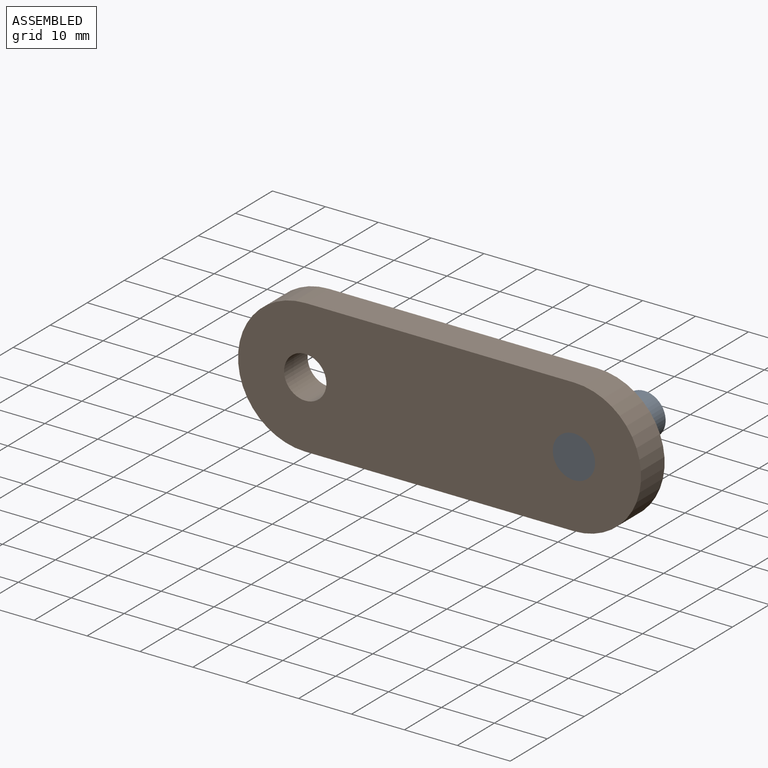
[diagram: assembled view]
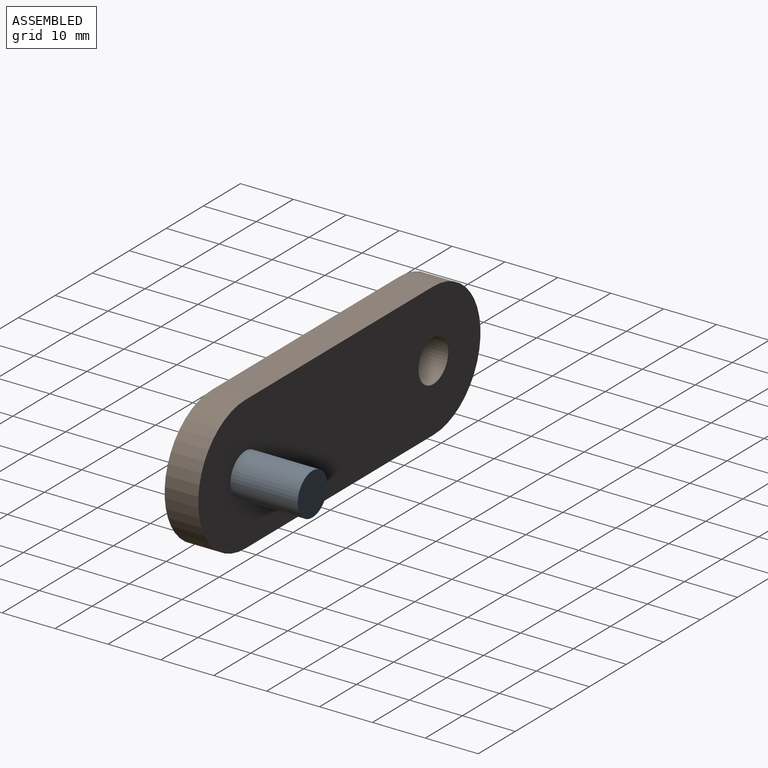
[diagram: assembled view, second angle]
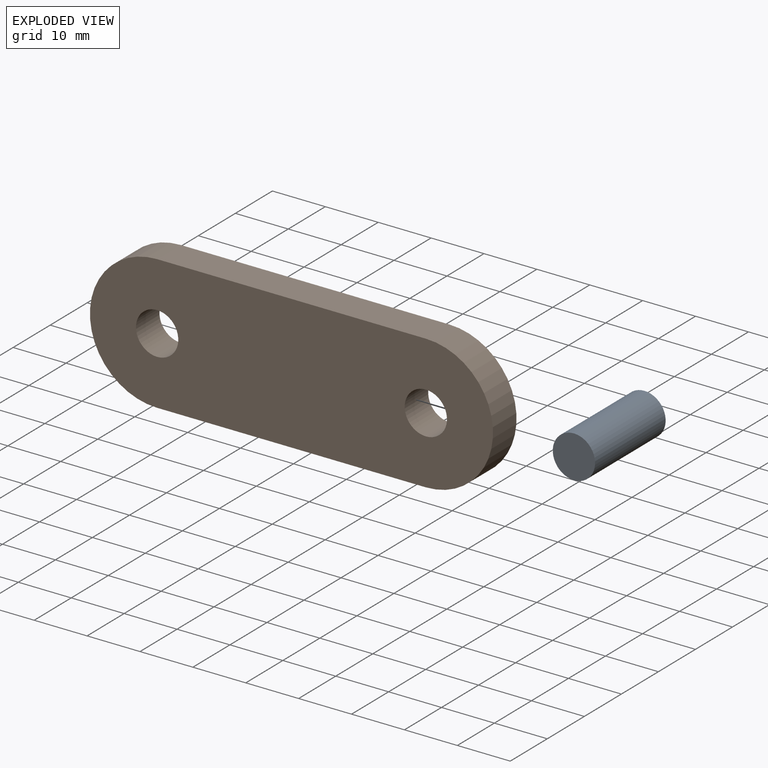
[diagram: exploded view]
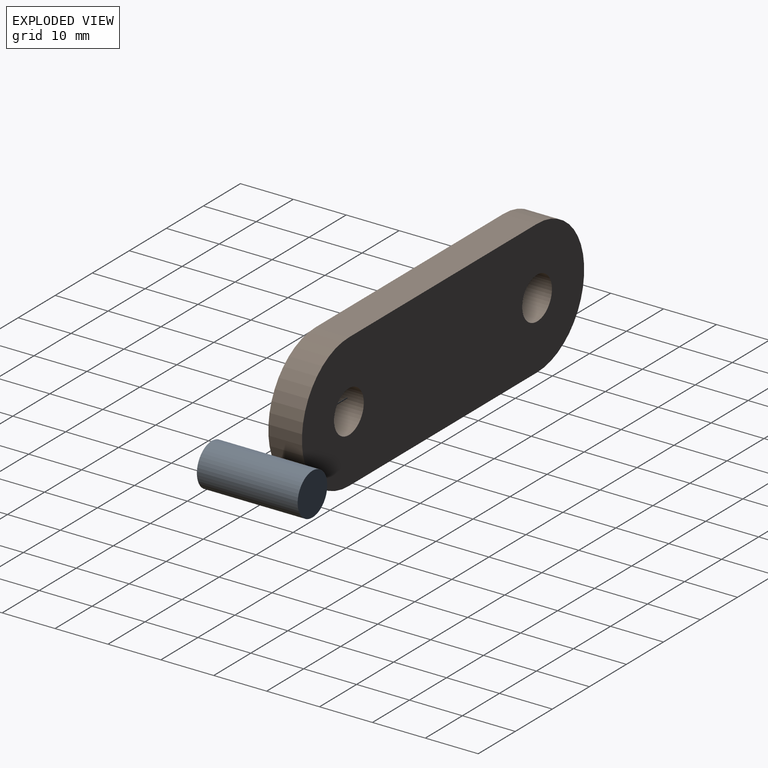
[diagram: exploded view, second angle]
ASSEMBLY  parts=2 mates=2
PART A: 3 faces, bbox 8x19.1x8 mm
  f0: cylinder r=4mm len=19.05mm, axis (0,1,0), area 478.8mm2, adj f1,f2
  f1: plane 8x8mm, normal (0,-1,0), area 50.3mm2, adj f0
  f2: plane 8x8mm, normal (0,1,0), area 50.3mm2, adj f0
PART B: 8 faces, bbox 76.2x6.4x25.4 mm
  f0: plane 50.8x6.35mm, normal (0,0,1), area 322.6mm2, adj f1,f3,f4,f5
  f1: cylinder r=12.7mm len=25.4mm, axis (0,1,0), area 253.4mm2, adj f0,f2,f4,f5
  f2: plane 50.8x6.35mm, normal (0,0,-1), area 322.6mm2, adj f1,f3,f4,f5
  f3: cylinder r=12.7mm len=25.4mm, axis (0,1,0), area 253.4mm2, adj f0,f2,f4,f5
  f4: plane 76.2x25.4mm, normal (0,-1,0), area 1696.5mm2, adj f0,f1,f2,f3,f6,f7
  f5: plane 76.2x25.4mm, normal (0,1,0), area 1696.5mm2, adj f0,f1,f2,f3,f6,f7
  f6: cylinder r=4mm len=8mm, axis (0,-1,0), area 159.6mm2, adj f4,f5
  f7: cylinder r=4mm len=8mm, axis (0,-1,0), area 159.6mm2, adj f4,f5
PLACE A t=(1.28,11.55,14.41)mm
PLACE B t=(1.28,-1.15,14.41)mm fixed
MATE planar A.f0 <-> B.f4  axis (0,-1,0) through (1.28,-7.5,14.41)mm
MATE cylindrical A.f0 <-> B.f7  axis (0,1,0) through (1.28,2.03,14.41)mm
